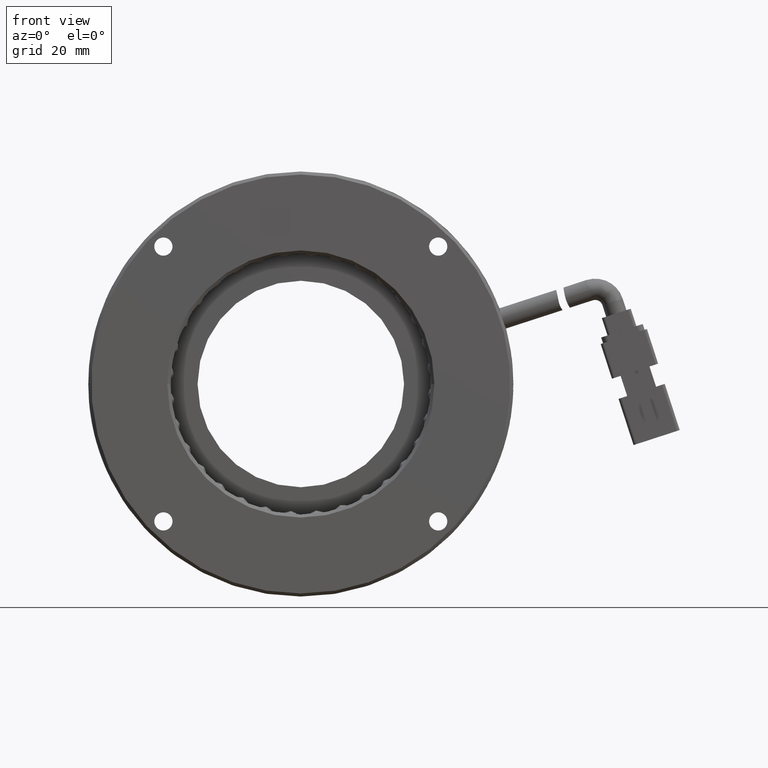
[diagram: clean part render]
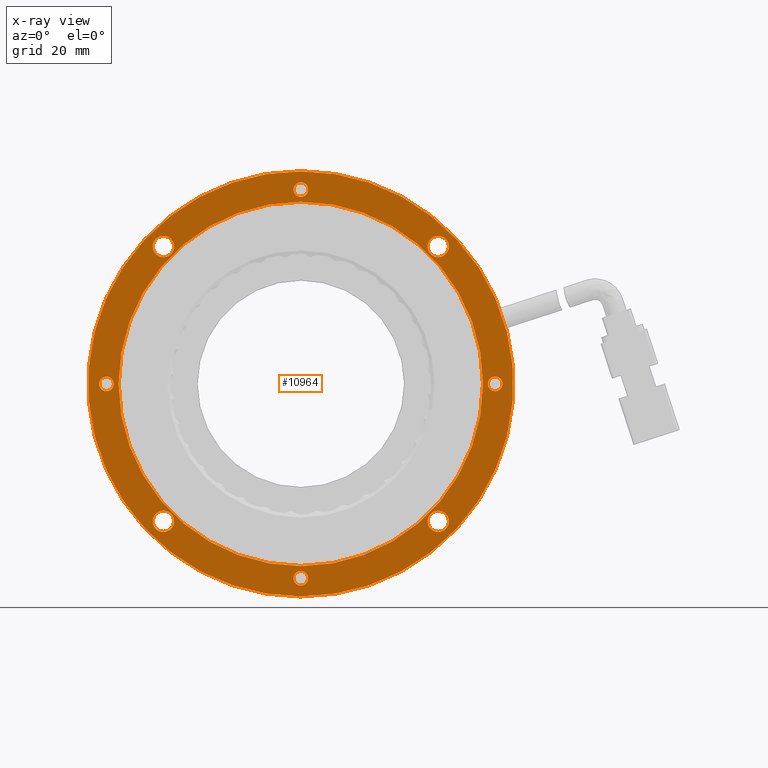
[diagram: x-ray — body ghosted, one internal face saturated and labeled with its STEP entity id]
A machine part, front view, then the same camera in x-ray: the body is ghosted and one INTERNAL B-rep face — a face not visible from any outside direction — is saturated and labeled: STEP entity #10964.
In plain terms, the highlighted planar face has unit normal (0, 1, 0).
Its self-contained STEP definition (entity closure, byte-faithful):
#114 = CIRCLE ( 'NONE', #33397, 1.749999999999991100 ) ;
#482 = EDGE_CURVE ( 'NONE', #30292, #26914, #4382, .T. ) ;
#617 = DIRECTION ( 'NONE',  ( 0.0000000000000000000, 0.0000000000000000000, 1.000000000000000000 ) ) ;
#700 = DIRECTION ( 'NONE',  ( 0.0000000000000000000, 0.0000000000000000000, -1.000000000000000000 ) ) ;
#831 = CARTESIAN_POINT ( 'NONE',  ( -28.33670914287390000, 11.26020291540426400, 22.62741699796946200 ) ) ;
#1162 = DIRECTION ( 'NONE',  ( 0.0000000000000000000, 0.0000000000000000000, 1.000000000000000000 ) ) ;
#1389 = DIRECTION ( 'NONE',  ( 0.0000000000000000000, -1.000000000000000000, 0.0000000000000000000 ) ) ;
#1686 = CARTESIAN_POINT ( 'NONE',  ( -28.33670914287374700, 11.26020291540426400, -24.37741699796965000 ) ) ;
#1850 = EDGE_CURVE ( 'NONE', #19099, #16941, #31600, .T. ) ;
#1877 = ORIENTED_EDGE ( 'NONE', *, *, #11487, .F. ) ;
#1902 = ORIENTED_EDGE ( 'NONE', *, *, #28822, .T. ) ;
#1920 = AXIS2_PLACEMENT_3D ( 'NONE', #10874, #32642, #13992 ) ;
#1954 = CARTESIAN_POINT ( 'NONE',  ( -5.709292144904231300, 11.26020291540426400, -33.20000000000002400 ) ) ;
#2419 = AXIS2_PLACEMENT_3D ( 'NONE', #32799, #14131, #35908 ) ;
#2477 = CARTESIAN_POINT ( 'NONE',  ( 26.29070785509565800, 11.26020291540426400, 1.200000000000201400 ) ) ;
#3657 = CIRCLE ( 'NONE', #34833, 1.199999999999999700 ) ;
#3742 = CIRCLE ( 'NONE', #22146, 1.749999999999991100 ) ;
#3950 = DIRECTION ( 'NONE',  ( 0.0000000000000000000, 0.0000000000000000000, 1.000000000000000000 ) ) ;
#3989 = FACE_BOUND ( 'NONE', #26026, .T. ) ;
#4077 = DIRECTION ( 'NONE',  ( 0.0000000000000000000, 1.000000000000000000, 0.0000000000000000000 ) ) ;
#4211 = AXIS2_PLACEMENT_3D ( 'NONE', #36267, #17581, #39355 ) ;
#4382 = CIRCLE ( 'NONE', #34592, 35.00000000000000000 ) ;
#4951 = FACE_BOUND ( 'NONE', #39947, .T. ) ;
#5065 = AXIS2_PLACEMENT_3D ( 'NONE', #34474, #15824, #37615 ) ;
#5548 = CIRCLE ( 'NONE', #39748, 1.199999999999999700 ) ;
#5657 = ORIENTED_EDGE ( 'NONE', *, *, #13183, .F. ) ;
#5801 = DIRECTION ( 'NONE',  ( -0.0000000000000000000, 1.000000000000000000, -0.0000000000000000000 ) ) ;
#5859 = VERTEX_POINT ( 'NONE', #1686 ) ;
#6070 = CIRCLE ( 'NONE', #23717, 1.749999999999991100 ) ;
#6150 = CARTESIAN_POINT ( 'NONE',  ( 26.29070785509565800, 11.26020291540426400, -1.199999999999798100 ) ) ;
#6343 = CARTESIAN_POINT ( 'NONE',  ( -28.33670914287390000, 11.26020291540426400, 20.87741699796946500 ) ) ;
#6942 = VERTEX_POINT ( 'NONE', #27620 ) ;
#7345 = CARTESIAN_POINT ( 'NONE',  ( 16.91812485306521900, 11.26020291540426400, 24.37741699796944800 ) ) ;
#7437 = EDGE_LOOP ( 'NONE', ( #35690, #38185 ) ) ;
#7595 = DIRECTION ( 'NONE',  ( 0.0000000000000000000, 1.000000000000000000, 0.0000000000000000000 ) ) ;
#7649 = CIRCLE ( 'NONE', #4211, 1.199999999999999700 ) ;
#7837 = CIRCLE ( 'NONE', #24854, 30.00000000000000000 ) ;
#8137 = EDGE_LOOP ( 'NONE', ( #31367, #10310 ) ) ;
#8214 = DIRECTION ( 'NONE',  ( 0.0000000000000000000, -1.000000000000000000, 0.0000000000000000000 ) ) ;
#8579 = CARTESIAN_POINT ( 'NONE',  ( -5.709292144904676300, 11.26020291540426400, 33.19999999999998200 ) ) ;
#9037 = EDGE_LOOP ( 'NONE', ( #31857, #25017 ) ) ;
#9280 = EDGE_CURVE ( 'NONE', #5859, #33334, #3742, .T. ) ;
#10116 = ORIENTED_EDGE ( 'NONE', *, *, #19198, .F. ) ;
#10310 = ORIENTED_EDGE ( 'NONE', *, *, #30122, .F. ) ;
#10530 = CARTESIAN_POINT ( 'NONE',  ( -5.709292144904231300, 11.26020291540426400, -32.00000000000002100 ) ) ;
#10617 = CARTESIAN_POINT ( 'NONE',  ( -5.709292144904342300, 11.26020291540426400, -2.081668171172168500E-014 ) ) ;
#10827 = EDGE_CURVE ( 'NONE', #16872, #26117, #7837, .T. ) ;
#10874 = CARTESIAN_POINT ( 'NONE',  ( -5.709292144904676300, 11.26020291540426400, 31.99999999999997900 ) ) ;
#10964 = ADVANCED_FACE ( 'NONE', ( #37072, #13182, #28787, #20498, #12235, #4951, #3989, #36099, #27827, #19499 ), #13687, .F. ) ;
#11033 = DIRECTION ( 'NONE',  ( -0.0000000000000000000, 1.000000000000000000, -0.0000000000000000000 ) ) ;
#11224 = CARTESIAN_POINT ( 'NONE',  ( -28.33670914287390000, 11.26020291540426400, 22.62741699796946200 ) ) ;
#11487 = EDGE_CURVE ( 'NONE', #37841, #15413, #39006, .T. ) ;
#11747 = CARTESIAN_POINT ( 'NONE',  ( 16.91812485306521900, 11.26020291540426400, 20.87741699796946500 ) ) ;
#12141 = CIRCLE ( 'NONE', #13961, 1.749999999999994700 ) ;
#12235 = FACE_BOUND ( 'NONE', #28215, .T. ) ;
#12514 = DIRECTION ( 'NONE',  ( -0.0000000000000000000, 1.000000000000000000, -0.0000000000000000000 ) ) ;
#12707 = CARTESIAN_POINT ( 'NONE',  ( 16.91812485306521900, 11.26020291540426400, 22.62741699796945800 ) ) ;
#12785 = CARTESIAN_POINT ( 'NONE',  ( -28.33670914287374700, 11.26020291540426400, -20.87741699796966800 ) ) ;
#12975 = CIRCLE ( 'NONE', #15060, 30.00000000000000000 ) ;
#13182 = FACE_BOUND ( 'NONE', #8137, .T. ) ;
#13183 = EDGE_CURVE ( 'NONE', #24413, #22457, #39674, .T. ) ;
#13400 = CIRCLE ( 'NONE', #30568, 1.749999999999994700 ) ;
#13601 = CIRCLE ( 'NONE', #18705, 1.749999999999991100 ) ;
#13652 = DIRECTION ( 'NONE',  ( 0.0000000000000000000, 0.0000000000000000000, 1.000000000000000000 ) ) ;
#13687 = PLANE ( 'NONE',  #36566 ) ;
#13772 = DIRECTION ( 'NONE',  ( 0.0000000000000000000, 0.0000000000000000000, -1.000000000000000000 ) ) ;
#13894 = ORIENTED_EDGE ( 'NONE', *, *, #10827, .F. ) ;
#13939 = AXIS2_PLACEMENT_3D ( 'NONE', #26891, #8214, #29978 ) ;
#13961 = AXIS2_PLACEMENT_3D ( 'NONE', #11224, #33012, #14345 ) ;
#13992 = DIRECTION ( 'NONE',  ( 0.0000000000000000000, 0.0000000000000000000, 1.000000000000000000 ) ) ;
#14028 = VERTEX_POINT ( 'NONE', #26846 ) ;
#14131 = DIRECTION ( 'NONE',  ( 0.0000000000000000000, -1.000000000000000000, 0.0000000000000000000 ) ) ;
#14345 = DIRECTION ( 'NONE',  ( 0.0000000000000000000, 0.0000000000000000000, 1.000000000000000000 ) ) ;
#14457 = CARTESIAN_POINT ( 'NONE',  ( -5.709292144904342300, 11.26020291540426400, -2.081668171172168500E-014 ) ) ;
#14549 = VERTEX_POINT ( 'NONE', #21030 ) ;
#15060 = AXIS2_PLACEMENT_3D ( 'NONE', #14457, #36248, #17567 ) ;
#15170 = EDGE_CURVE ( 'NONE', #26117, #16872, #12975, .T. ) ;
#15413 = VERTEX_POINT ( 'NONE', #6150 ) ;
#15731 = EDGE_LOOP ( 'NONE', ( #17933, #13894 ) ) ;
#15824 = DIRECTION ( 'NONE',  ( 0.0000000000000000000, -1.000000000000000000, 0.0000000000000000000 ) ) ;
#15844 = EDGE_CURVE ( 'NONE', #31222, #6942, #6070, .T. ) ;
#15880 = CARTESIAN_POINT ( 'NONE',  ( -28.33670914287390000, 11.26020291540426400, 24.37741699796945500 ) ) ;
#16289 = CARTESIAN_POINT ( 'NONE',  ( -5.709292144904676300, 11.26020291540426400, 30.79999999999997900 ) ) ;
#16324 = ORIENTED_EDGE ( 'NONE', *, *, #15844, .T. ) ;
#16431 = ORIENTED_EDGE ( 'NONE', *, *, #32514, .T. ) ;
#16837 = CARTESIAN_POINT ( 'NONE',  ( -5.709292144904231300, 11.26020291540426400, -30.80000000000002200 ) ) ;
#16872 = VERTEX_POINT ( 'NONE', #27150 ) ;
#16941 = VERTEX_POINT ( 'NONE', #11747 ) ;
#17175 = VERTEX_POINT ( 'NONE', #15880 ) ;
#17514 = DIRECTION ( 'NONE',  ( 0.0000000000000000000, -1.000000000000000000, 0.0000000000000000000 ) ) ;
#17567 = DIRECTION ( 'NONE',  ( 0.0000000000000000000, 0.0000000000000000000, -1.000000000000000000 ) ) ;
#17581 = DIRECTION ( 'NONE',  ( 0.0000000000000000000, -1.000000000000000000, 0.0000000000000000000 ) ) ;
#17712 = CIRCLE ( 'NONE', #2419, 1.199999999999999700 ) ;
#17933 = ORIENTED_EDGE ( 'NONE', *, *, #15170, .F. ) ;
#18265 = AXIS2_PLACEMENT_3D ( 'NONE', #10617, #32412, #13772 ) ;
#18462 = DIRECTION ( 'NONE',  ( -0.0000000000000000000, 1.000000000000000000, -0.0000000000000000000 ) ) ;
#18511 = EDGE_CURVE ( 'NONE', #26914, #30292, #35066, .T. ) ;
#18705 = AXIS2_PLACEMENT_3D ( 'NONE', #29665, #11033, #32834 ) ;
#19099 = VERTEX_POINT ( 'NONE', #7345 ) ;
#19189 = DIRECTION ( 'NONE',  ( -0.0000000000000000000, 1.000000000000000000, -0.0000000000000000000 ) ) ;
#19198 = EDGE_CURVE ( 'NONE', #30836, #27769, #37372, .T. ) ;
#19262 = DIRECTION ( 'NONE',  ( -0.0000000000000000000, -1.000000000000000000, -0.0000000000000000000 ) ) ;
#19499 = FACE_BOUND ( 'NONE', #15731, .T. ) ;
#19744 = DIRECTION ( 'NONE',  ( -0.0000000000000000000, 1.000000000000000000, -0.0000000000000000000 ) ) ;
#19977 = CARTESIAN_POINT ( 'NONE',  ( 26.29070785509565800, 11.26020291540426400, 2.016849253798697700E-013 ) ) ;
#20170 = EDGE_LOOP ( 'NONE', ( #1877, #33111 ) ) ;
#20498 = FACE_BOUND ( 'NONE', #20170, .T. ) ;
#20502 = AXIS2_PLACEMENT_3D ( 'NONE', #31177, #12514, #34317 ) ;
#20876 = ORIENTED_EDGE ( 'NONE', *, *, #30068, .F. ) ;
#21030 = CARTESIAN_POINT ( 'NONE',  ( -37.70929214490434600, 11.26020291540426400, 1.199999999999979700 ) ) ;
#21356 = AXIS2_PLACEMENT_3D ( 'NONE', #12707, #5801, #30430 ) ;
#22146 = AXIS2_PLACEMENT_3D ( 'NONE', #37850, #19189, #617 ) ;
#22457 = VERTEX_POINT ( 'NONE', #1954 ) ;
#22550 = DIRECTION ( 'NONE',  ( -0.0000000000000000000, 1.000000000000000000, -0.0000000000000000000 ) ) ;
#23132 = DIRECTION ( 'NONE',  ( 0.0000000000000000000, 0.0000000000000000000, 1.000000000000000000 ) ) ;
#23717 = AXIS2_PLACEMENT_3D ( 'NONE', #37130, #18462, #40231 ) ;
#24413 = VERTEX_POINT ( 'NONE', #16837 ) ;
#24854 = AXIS2_PLACEMENT_3D ( 'NONE', #37917, #19262, #700 ) ;
#25017 = ORIENTED_EDGE ( 'NONE', *, *, #18511, .F. ) ;
#25414 = ORIENTED_EDGE ( 'NONE', *, *, #35232, .T. ) ;
#26026 = EDGE_LOOP ( 'NONE', ( #16431, #27525 ) ) ;
#26117 = VERTEX_POINT ( 'NONE', #32216 ) ;
#26253 = CARTESIAN_POINT ( 'NONE',  ( -40.70929214490435300, 11.26020291540426400, -2.081668171172168500E-014 ) ) ;
#26846 = CARTESIAN_POINT ( 'NONE',  ( -37.70929214490434600, 11.26020291540426400, -1.200000000000019700 ) ) ;
#26891 = CARTESIAN_POINT ( 'NONE',  ( 26.29070785509565800, 11.26020291540426400, 2.016849253798697700E-013 ) ) ;
#26914 = VERTEX_POINT ( 'NONE', #33249 ) ;
#26919 = EDGE_LOOP ( 'NONE', ( #25414, #16324 ) ) ;
#27150 = CARTESIAN_POINT ( 'NONE',  ( -5.709292144904338800, 11.26020291540426400, 29.99999999999997900 ) ) ;
#27411 = EDGE_CURVE ( 'NONE', #15413, #37841, #5548, .T. ) ;
#27525 = ORIENTED_EDGE ( 'NONE', *, *, #39853, .T. ) ;
#27527 = EDGE_CURVE ( 'NONE', #14549, #14028, #3657, .T. ) ;
#27620 = CARTESIAN_POINT ( 'NONE',  ( 16.91812485306537200, 11.26020291540426400, -20.87741699796935500 ) ) ;
#27769 = VERTEX_POINT ( 'NONE', #16289 ) ;
#27827 = FACE_BOUND ( 'NONE', #26919, .T. ) ;
#28215 = EDGE_LOOP ( 'NONE', ( #10116, #30303 ) ) ;
#28787 = FACE_BOUND ( 'NONE', #39353, .T. ) ;
#28822 = EDGE_CURVE ( 'NONE', #16941, #19099, #13601, .T. ) ;
#29347 = DIRECTION ( 'NONE',  ( 0.0000000000000000000, -0.0000000000000000000, 1.000000000000000000 ) ) ;
#29665 = CARTESIAN_POINT ( 'NONE',  ( 16.91812485306521900, 11.26020291540426400, 22.62741699796945800 ) ) ;
#29854 = VERTEX_POINT ( 'NONE', #6343 ) ;
#29978 = DIRECTION ( 'NONE',  ( 0.0000000000000000000, 0.0000000000000000000, 1.000000000000000000 ) ) ;
#30042 = CIRCLE ( 'NONE', #32078, 1.199999999999999700 ) ;
#30068 = EDGE_CURVE ( 'NONE', #22457, #24413, #30042, .T. ) ;
#30122 = EDGE_CURVE ( 'NONE', #14028, #14549, #7649, .T. ) ;
#30292 = VERTEX_POINT ( 'NONE', #30810 ) ;
#30303 = ORIENTED_EDGE ( 'NONE', *, *, #36020, .F. ) ;
#30430 = DIRECTION ( 'NONE',  ( 0.0000000000000000000, 0.0000000000000000000, 1.000000000000000000 ) ) ;
#30568 = AXIS2_PLACEMENT_3D ( 'NONE', #831, #22550, #3950 ) ;
#30810 = CARTESIAN_POINT ( 'NONE',  ( -5.709292144904342300, 11.26020291540426400, -35.00000000000002100 ) ) ;
#30836 = VERTEX_POINT ( 'NONE', #8579 ) ;
#31177 = CARTESIAN_POINT ( 'NONE',  ( -28.33670914287374700, 11.26020291540426400, -22.62741699796966100 ) ) ;
#31184 = ORIENTED_EDGE ( 'NONE', *, *, #1850, .T. ) ;
#31222 = VERTEX_POINT ( 'NONE', #32976 ) ;
#31367 = ORIENTED_EDGE ( 'NONE', *, *, #27527, .F. ) ;
#31600 = CIRCLE ( 'NONE', #21356, 1.749999999999991100 ) ;
#31665 = DIRECTION ( 'NONE',  ( 0.0000000000000000000, 0.0000000000000000000, -1.000000000000000000 ) ) ;
#31857 = ORIENTED_EDGE ( 'NONE', *, *, #482, .F. ) ;
#32078 = AXIS2_PLACEMENT_3D ( 'NONE', #10530, #32304, #13652 ) ;
#32079 = CIRCLE ( 'NONE', #20502, 1.749999999999991100 ) ;
#32216 = CARTESIAN_POINT ( 'NONE',  ( -5.709292144904342300, 11.26020291540426400, -30.00000000000002100 ) ) ;
#32304 = DIRECTION ( 'NONE',  ( 0.0000000000000000000, -1.000000000000000000, 0.0000000000000000000 ) ) ;
#32412 = DIRECTION ( 'NONE',  ( 0.0000000000000000000, 1.000000000000000000, 0.0000000000000000000 ) ) ;
#32514 = EDGE_CURVE ( 'NONE', #17175, #29854, #12141, .T. ) ;
#32642 = DIRECTION ( 'NONE',  ( 0.0000000000000000000, -1.000000000000000000, 0.0000000000000000000 ) ) ;
#32799 = CARTESIAN_POINT ( 'NONE',  ( -5.709292144904676300, 11.26020291540426400, 31.99999999999997900 ) ) ;
#32834 = DIRECTION ( 'NONE',  ( 0.0000000000000000000, 0.0000000000000000000, 1.000000000000000000 ) ) ;
#32976 = CARTESIAN_POINT ( 'NONE',  ( 16.91812485306537200, 11.26020291540426400, -24.37741699796933800 ) ) ;
#33012 = DIRECTION ( 'NONE',  ( -0.0000000000000000000, 1.000000000000000000, -0.0000000000000000000 ) ) ;
#33111 = ORIENTED_EDGE ( 'NONE', *, *, #27411, .F. ) ;
#33247 = EDGE_CURVE ( 'NONE', #33334, #5859, #32079, .T. ) ;
#33249 = CARTESIAN_POINT ( 'NONE',  ( -5.709292144904337900, 11.26020291540426400, 34.99999999999998600 ) ) ;
#33334 = VERTEX_POINT ( 'NONE', #12785 ) ;
#33397 = AXIS2_PLACEMENT_3D ( 'NONE', #38396, #19744, #1162 ) ;
#34317 = DIRECTION ( 'NONE',  ( 0.0000000000000000000, 0.0000000000000000000, 1.000000000000000000 ) ) ;
#34474 = CARTESIAN_POINT ( 'NONE',  ( -5.709292144904231300, 11.26020291540426400, -32.00000000000002100 ) ) ;
#34592 = AXIS2_PLACEMENT_3D ( 'NONE', #38187, #4077, #31665 ) ;
#34833 = AXIS2_PLACEMENT_3D ( 'NONE', #36198, #17514, #39288 ) ;
#35066 = CIRCLE ( 'NONE', #18265, 35.00000000000000000 ) ;
#35232 = EDGE_CURVE ( 'NONE', #6942, #31222, #114, .T. ) ;
#35690 = ORIENTED_EDGE ( 'NONE', *, *, #33247, .T. ) ;
#35908 = DIRECTION ( 'NONE',  ( 0.0000000000000000000, 0.0000000000000000000, 1.000000000000000000 ) ) ;
#36020 = EDGE_CURVE ( 'NONE', #27769, #30836, #17712, .T. ) ;
#36099 = FACE_BOUND ( 'NONE', #7437, .T. ) ;
#36198 = CARTESIAN_POINT ( 'NONE',  ( -37.70929214490434600, 11.26020291540426400, -1.986335369231264700E-014 ) ) ;
#36248 = DIRECTION ( 'NONE',  ( -0.0000000000000000000, -1.000000000000000000, -0.0000000000000000000 ) ) ;
#36267 = CARTESIAN_POINT ( 'NONE',  ( -37.70929214490434600, 11.26020291540426400, -1.986335369231264700E-014 ) ) ;
#36566 = AXIS2_PLACEMENT_3D ( 'NONE', #26253, #7595, #29347 ) ;
#37072 = FACE_OUTER_BOUND ( 'NONE', #9037, .T. ) ;
#37130 = CARTESIAN_POINT ( 'NONE',  ( 16.91812485306537200, 11.26020291540426400, -22.62741699796934800 ) ) ;
#37372 = CIRCLE ( 'NONE', #1920, 1.199999999999999700 ) ;
#37615 = DIRECTION ( 'NONE',  ( 0.0000000000000000000, 0.0000000000000000000, 1.000000000000000000 ) ) ;
#37841 = VERTEX_POINT ( 'NONE', #2477 ) ;
#37850 = CARTESIAN_POINT ( 'NONE',  ( -28.33670914287374700, 11.26020291540426400, -22.62741699796966100 ) ) ;
#37917 = CARTESIAN_POINT ( 'NONE',  ( -5.709292144904342300, 11.26020291540426400, -2.081668171172168500E-014 ) ) ;
#38185 = ORIENTED_EDGE ( 'NONE', *, *, #9280, .T. ) ;
#38187 = CARTESIAN_POINT ( 'NONE',  ( -5.709292144904342300, 11.26020291540426400, -2.081668171172168500E-014 ) ) ;
#38396 = CARTESIAN_POINT ( 'NONE',  ( 16.91812485306537200, 11.26020291540426400, -22.62741699796934800 ) ) ;
#39006 = CIRCLE ( 'NONE', #13939, 1.199999999999999700 ) ;
#39288 = DIRECTION ( 'NONE',  ( 0.0000000000000000000, 0.0000000000000000000, 1.000000000000000000 ) ) ;
#39353 = EDGE_LOOP ( 'NONE', ( #5657, #20876 ) ) ;
#39355 = DIRECTION ( 'NONE',  ( 0.0000000000000000000, 0.0000000000000000000, 1.000000000000000000 ) ) ;
#39674 = CIRCLE ( 'NONE', #5065, 1.199999999999999700 ) ;
#39748 = AXIS2_PLACEMENT_3D ( 'NONE', #19977, #1389, #23132 ) ;
#39853 = EDGE_CURVE ( 'NONE', #29854, #17175, #13400, .T. ) ;
#39947 = EDGE_LOOP ( 'NONE', ( #31184, #1902 ) ) ;
#40231 = DIRECTION ( 'NONE',  ( 0.0000000000000000000, 0.0000000000000000000, 1.000000000000000000 ) ) ;